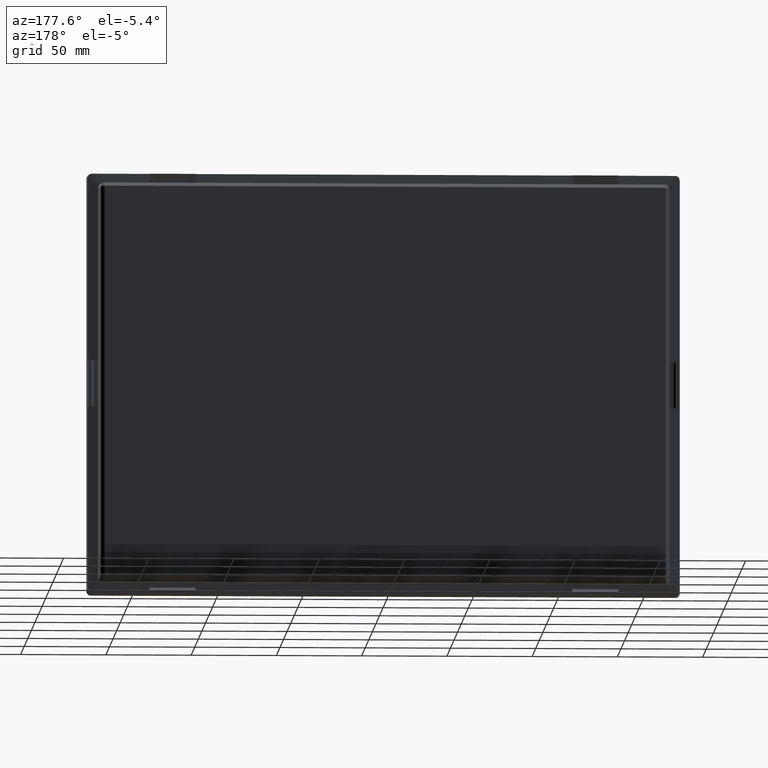
[diagram: clean part render]
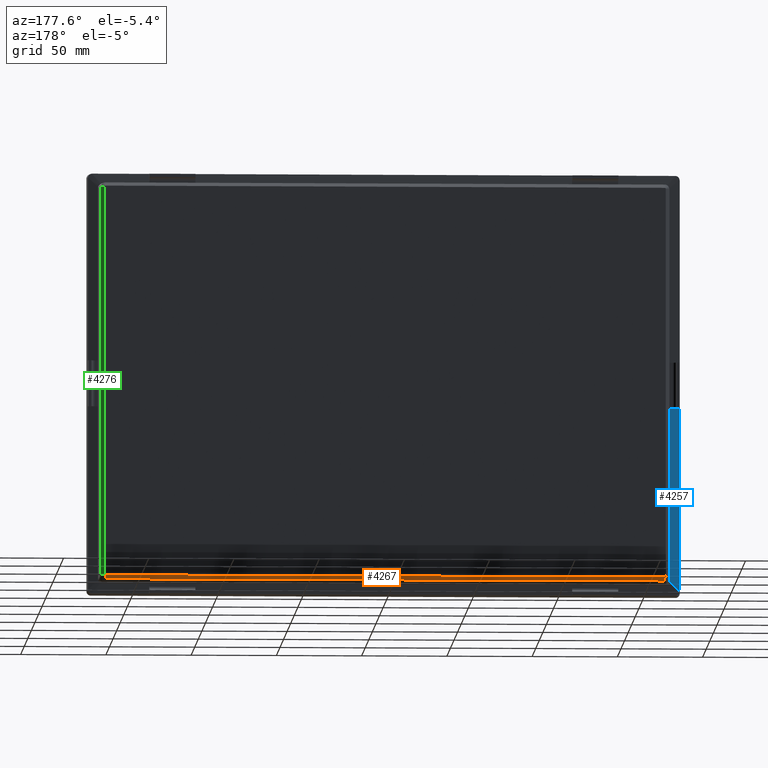
[diagram: same view with three faces highlighted in distinct colors, each labeled with its STEP entity id]
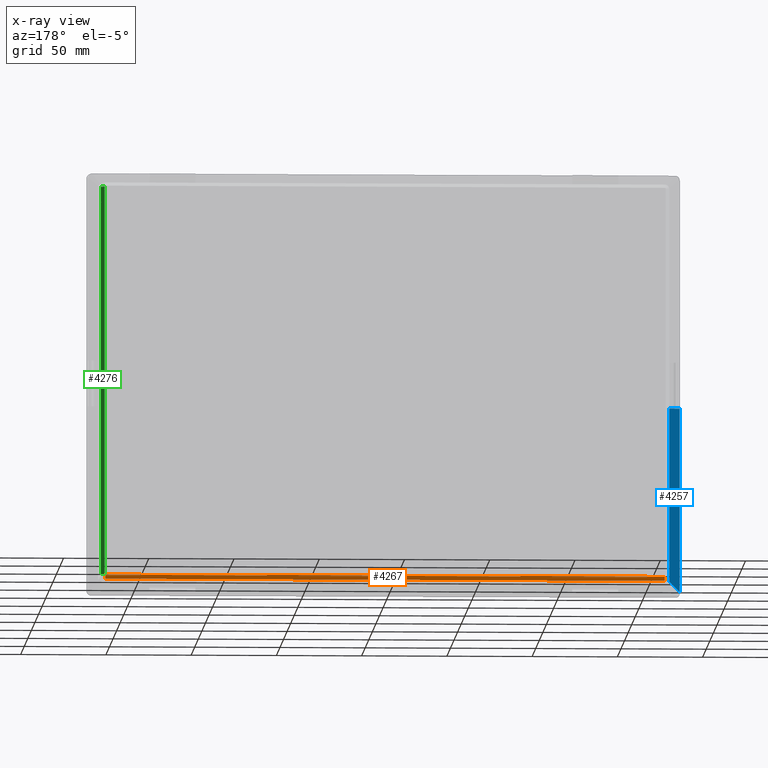
[diagram: x-ray of the same camera — body ghosted, the three highlighted faces saturated]
A machine part, auxiliary view with three faces highlighted in distinct colors.
The next image is the same camera in x-ray (body ghosted, the three faces saturated) — at least one of them is partly hidden behind the body in this view.
Their STEP definitions:

[orange] entity #4267 — the highlighted planar face has unit normal (0, -0.7254, 0.6884).
#178 = VECTOR ( 'NONE', #4289, 1000.000000000000000 ) ;
#179 = VECTOR ( 'NONE', #4287, 1000.000000000000000 ) ;
#698 = CARTESIAN_POINT ( 'NONE',  ( 164.0029244504000300, 28.00282219860000100, -116.6493728999000000 ) ) ;
#700 = CARTESIAN_POINT ( 'NONE',  ( -164.0029244504000300, 28.00282219860000100, -116.6493728999000000 ) ) ;
#726 = CARTESIAN_POINT ( 'NONE',  ( 164.0029275636000000, 30.00002131024999800, -114.5446441036000100 ) ) ;
#735 = CARTESIAN_POINT ( 'NONE',  ( -164.0029275636000000, 30.00002131024999800, -114.5446441036000100 ) ) ;
#775 = B_SPLINE_CURVE_WITH_KNOTS ( 'NONE', 3,
 ( #4286, #4285, #4284, #4283 ),
 .UNSPECIFIED., .F., .F.,
 ( 4, 4 ),
 ( 0.0000000000000000000, 1.000000000000000000 ),
 .UNSPECIFIED. ) ;
#783 = B_SPLINE_CURVE_WITH_KNOTS ( 'NONE', 3,
 ( #4282, #4321, #4322, #4323 ),
 .UNSPECIFIED., .F., .F.,
 ( 4, 4 ),
 ( 0.0000000000000000000, 1.000000000000000000 ),
 .UNSPECIFIED. ) ;
#1073 = ORIENTED_EDGE ( 'NONE', *, *, #1819, .F. ) ;
#1075 = ORIENTED_EDGE ( 'NONE', *, *, #1820, .T. ) ;
#1076 = ORIENTED_EDGE ( 'NONE', *, *, #1818, .F. ) ;
#1077 = ORIENTED_EDGE ( 'NONE', *, *, #1817, .F. ) ;
#1525 = FACE_OUTER_BOUND ( 'NONE', #1998, .T. ) ;
#1817 = EDGE_CURVE ( 'NONE', #2239, #2248, #2443, .T. ) ;
#1818 = EDGE_CURVE ( 'NONE', #2213, #2211, #2444, .T. ) ;
#1819 = EDGE_CURVE ( 'NONE', #2211, #2239, #775, .T. ) ;
#1820 = EDGE_CURVE ( 'NONE', #2213, #2248, #783, .T. ) ;
#1998 = EDGE_LOOP ( 'NONE', ( #1073, #1076, #1075, #1077 ) ) ;
#2211 = VERTEX_POINT ( 'NONE', #698 ) ;
#2213 = VERTEX_POINT ( 'NONE', #700 ) ;
#2239 = VERTEX_POINT ( 'NONE', #726 ) ;
#2248 = VERTEX_POINT ( 'NONE', #735 ) ;
#2443 = LINE ( 'NONE', #4290, #178 ) ;
#2444 = LINE ( 'NONE', #4288, #179 ) ;
#2666 = AXIS2_PLACEMENT_3D ( 'NONE', #3148, #3149, #3150 ) ;
#3147 = PLANE ( 'NONE',  #2666 ) ;
#3148 = CARTESIAN_POINT ( 'NONE',  ( 25.00000000000000000, 29.00137046525000500, -115.5969598421999900 ) ) ;
#3149 = DIRECTION ( 'NONE',  ( 0.0000000000000000000, -0.7253743710122705400, 0.6883545756937721200 ) ) ;
#3150 = DIRECTION ( 'NONE',  ( 0.0000000000000000000, 0.6883545756937720100, 0.7253743710122704200 ) ) ;
#4267 = ADVANCED_FACE ( 'NONE', ( #1525 ), #3147, .F. ) ;
#4282 = CARTESIAN_POINT ( 'NONE',  ( -164.0029244504000300, 28.00282219860000100, -116.6493728999000000 ) ) ;
#4283 = CARTESIAN_POINT ( 'NONE',  ( 164.0029275636000000, 30.00002131024999800, -114.5446441036000100 ) ) ;
#4284 = CARTESIAN_POINT ( 'NONE',  ( 164.0029265175825500, 29.33439811291299600, -115.2463244141749900 ) ) ;
#4285 = CARTESIAN_POINT ( 'NONE',  ( 164.0029223774993500, 28.66873213696762300, -115.9479643025815700 ) ) ;
#4286 = CARTESIAN_POINT ( 'NONE',  ( 164.0029244504000300, 28.00282219860000100, -116.6493728999000000 ) ) ;
#4287 = DIRECTION ( 'NONE',  ( 1.000000000000000000, 0.0000000000000000000, 0.0000000000000000000 ) ) ;
#4288 = CARTESIAN_POINT ( 'NONE',  ( -117.6085018054000000, 28.00274093049829800, -116.6492957984398500 ) ) ;
#4289 = DIRECTION ( 'NONE',  ( -1.000000000000000000, 0.0000000000000000000, 0.0000000000000000000 ) ) ;
#4290 = CARTESIAN_POINT ( 'NONE',  ( 25.00000000000000000, 30.00000000000000000, -114.5446238859619300 ) ) ;
#4321 = CARTESIAN_POINT ( 'NONE',  ( -164.0029254881020200, 28.66849396085759900, -115.9477384867016800 ) ) ;
#4322 = CARTESIAN_POINT ( 'NONE',  ( -164.0029265258040700, 29.33424698168559200, -115.2461811850074300 ) ) ;
#4323 = CARTESIAN_POINT ( 'NONE',  ( -164.0029275636000000, 30.00002131024999800, -114.5446441036000100 ) ) ;

[blue] entity #4257 — the highlighted planar face has unit normal (0.0872, -0.9962, 0).
#186 = VECTOR ( 'NONE', #3767, 1000.000000000000000 ) ;
#204 = VECTOR ( 'NONE', #4084, 1000.000000000000000 ) ;
#707 = CARTESIAN_POINT ( 'NONE',  ( -167.6085018054345100, 9.700000000003626600, -114.9621335383317300 ) ) ;
#708 = CARTESIAN_POINT ( 'NONE',  ( -167.6085018054000100, 9.700000000000001100, -13.50000000000000000 ) ) ;
#720 = CARTESIAN_POINT ( 'NONE',  ( -173.5006535672139900, 9.184503517070560000, -121.3217599985017000 ) ) ;
#723 = CARTESIAN_POINT ( 'NONE',  ( -173.5187435107999900, 9.182920852082000700, -121.0221696739000100 ) ) ;
#728 = CARTESIAN_POINT ( 'NONE',  ( -167.5729141304121900, 9.703113518128372300, -115.3940205617020400 ) ) ;
#734 = CARTESIAN_POINT ( 'NONE',  ( -173.5187435107999900, 9.182920852082000700, -13.50000000000000000 ) ) ;
#786 = B_SPLINE_CURVE_WITH_KNOTS ( 'NONE', 3,
 ( #3782, #3781, #3780, #3779 ),
 .UNSPECIFIED., .F., .F.,
 ( 4, 4 ),
 ( 0.0000000000000000000, 1.000000000000000000 ),
 .UNSPECIFIED. ) ;
#788 = B_SPLINE_CURVE_WITH_KNOTS ( 'NONE', 3,
 ( #3734, #3732, #3764, #3761 ),
 .UNSPECIFIED., .F., .F.,
 ( 4, 4 ),
 ( 0.0000000000000000000, 1.000000000000000000 ),
 .UNSPECIFIED. ) ;
#1122 = ORIENTED_EDGE ( 'NONE', *, *, #1832, .T. ) ;
#1123 = ORIENTED_EDGE ( 'NONE', *, *, #1826, .F. ) ;
#1124 = ORIENTED_EDGE ( 'NONE', *, *, #1856, .T. ) ;
#1125 = ORIENTED_EDGE ( 'NONE', *, *, #1857, .F. ) ;
#1126 = ORIENTED_EDGE ( 'NONE', *, *, #1855, .F. ) ;
#1127 = ORIENTED_EDGE ( 'NONE', *, *, #1848, .F. ) ;
#1518 = FACE_OUTER_BOUND ( 'NONE', #2019, .T. ) ;
#1713 = VECTOR ( 'NONE', #3740, 999.9999999999998900 ) ;
#1826 = EDGE_CURVE ( 'NONE', #2241, #2220, #786, .T. ) ;
#1832 = EDGE_CURVE ( 'NONE', #2221, #2220, #2451, .T. ) ;
#1848 = EDGE_CURVE ( 'NONE', #2247, #2236, #2465, .T. ) ;
#1855 = EDGE_CURVE ( 'NONE', #2236, #2233, #788, .T. ) ;
#1856 = EDGE_CURVE ( 'NONE', #2241, #2233, #2470, .T. ) ;
#1857 = EDGE_CURVE ( 'NONE', #2221, #2247, #2471, .T. ) ;
#2019 = EDGE_LOOP ( 'NONE', ( #1122, #1123, #1124, #1126, #1127, #1125 ) ) ;
#2220 = VERTEX_POINT ( 'NONE', #707 ) ;
#2221 = VERTEX_POINT ( 'NONE', #708 ) ;
#2233 = VERTEX_POINT ( 'NONE', #720 ) ;
#2236 = VERTEX_POINT ( 'NONE', #723 ) ;
#2241 = VERTEX_POINT ( 'NONE', #728 ) ;
#2247 = VERTEX_POINT ( 'NONE', #734 ) ;
#2451 = LINE ( 'NONE', #3768, #186 ) ;
#2465 = LINE ( 'NONE', #4116, #204 ) ;
#2470 = LINE ( 'NONE', #3755, #3609 ) ;
#2471 = LINE ( 'NONE', #3743, #1713 ) ;
#2631 = AXIS2_PLACEMENT_3D ( 'NONE', #3112, #3113, #3114 ) ;
#3111 = PLANE ( 'NONE',  #2631 ) ;
#3112 = CARTESIAN_POINT ( 'NONE',  ( -167.6085018054000100, 9.700000000000001100, -117.6085018054000000 ) ) ;
#3113 = DIRECTION ( 'NONE',  ( 0.08715574274766393900, -0.9961946980917451000, 0.0000000000000000000 ) ) ;
#3114 = DIRECTION ( 'NONE',  ( -0.9961946980917449900, -0.08715574274766392500, 0.0000000000000000000 ) ) ;
#3609 = VECTOR ( 'NONE', #3749, 1000.000000000000100 ) ;
#3732 = CARTESIAN_POINT ( 'NONE',  ( -173.5187435107999900, 9.182920852082000700, -121.1224001448000000 ) ) ;
#3734 = CARTESIAN_POINT ( 'NONE',  ( -173.5187435107999900, 9.182920852082000700, -121.0221696739000100 ) ) ;
#3740 = DIRECTION ( 'NONE',  ( -0.9961946980917451000, -0.08715574274766395300, -1.197647983650054100E-014 ) ) ;
#3743 = CARTESIAN_POINT ( 'NONE',  ( -167.6085018054000100, 9.700000000000001100, -13.50000000000000000 ) ) ;
#3749 = DIRECTION ( 'NONE',  ( -0.7057575568079018600, -0.06174578541845016100, -0.7057575568080019000 ) ) ;
#3755 = CARTESIAN_POINT ( 'NONE',  ( -167.5729141303999900, 9.703113518128999400, -115.3940205617000000 ) ) ;
#3761 = CARTESIAN_POINT ( 'NONE',  ( -173.5006535672139900, 9.184503517070560000, -121.3217599985017000 ) ) ;
#3764 = CARTESIAN_POINT ( 'NONE',  ( -173.5127180639000000, 9.183448010381999500, -121.2222638623000100 ) ) ;
#3767 = DIRECTION ( 'NONE',  ( 0.0000000000000000000, 0.0000000000000000000, -1.000000000000000000 ) ) ;
#3768 = CARTESIAN_POINT ( 'NONE',  ( -167.6085018054000100, 9.700000000000001100, -13.50000000000000000 ) ) ;
#3779 = CARTESIAN_POINT ( 'NONE',  ( -167.6085018054345100, 9.700000000003626600, -114.9621335383317300 ) ) ;
#3780 = CARTESIAN_POINT ( 'NONE',  ( -167.6085018054690500, 9.700000000007253900, -115.1079300478163200 ) ) ;
#3781 = CARTESIAN_POINT ( 'NONE',  ( -167.5964058570021400, 9.701058429264984200, -115.2525186574245600 ) ) ;
#3782 = CARTESIAN_POINT ( 'NONE',  ( -167.5729141304121900, 9.703113518128372300, -115.3940205617020400 ) ) ;
#4084 = DIRECTION ( 'NONE',  ( 0.0000000000000000000, 0.0000000000000000000, -1.000000000000000000 ) ) ;
#4116 = CARTESIAN_POINT ( 'NONE',  ( -173.5187435107999900, 9.182920852082000700, -13.50000000000000000 ) ) ;
#4257 = ADVANCED_FACE ( 'NONE', ( #1518 ), #3111, .F. ) ;

[green] entity #4276 — the highlighted planar face has unit normal (0.6884, 0.7254, 0).
#174 = VECTOR ( 'NONE', #3421, 1000.000000000000000 ) ;
#175 = VECTOR ( 'NONE', #3411, 1000.000000000000000 ) ;
#688 = CARTESIAN_POINT ( 'NONE',  ( 166.6493637655999900, 28.00281256858999900, 114.0029248293000000 ) ) ;
#701 = CARTESIAN_POINT ( 'NONE',  ( 164.5446417082999900, 30.00001878492999900, 114.0029275632000000 ) ) ;
#704 = CARTESIAN_POINT ( 'NONE',  ( 164.5446417082999900, 30.00001878492999900, -114.0029275632000000 ) ) ;
#718 = CARTESIAN_POINT ( 'NONE',  ( 166.6493637655999900, 28.00281256858999900, -114.0029248293000000 ) ) ;
#791 = B_SPLINE_CURVE_WITH_KNOTS ( 'NONE', 3,
 ( #3420, #3419, #3418, #3417 ),
 .UNSPECIFIED., .F., .F.,
 ( 4, 4 ),
 ( 0.0000000000000000000, 1.000000000000000000 ),
 .UNSPECIFIED. ) ;
#794 = B_SPLINE_CURVE_WITH_KNOTS ( 'NONE', 3,
 ( #3416, #3415, #3414, #3413 ),
 .UNSPECIFIED., .F., .F.,
 ( 4, 4 ),
 ( 0.0000000000000000000, 1.000000000000000000 ),
 .UNSPECIFIED. ) ;
#1062 = ORIENTED_EDGE ( 'NONE', *, *, #1808, .F. ) ;
#1063 = ORIENTED_EDGE ( 'NONE', *, *, #1809, .T. ) ;
#1064 = ORIENTED_EDGE ( 'NONE', *, *, #1807, .F. ) ;
#1066 = ORIENTED_EDGE ( 'NONE', *, *, #1810, .F. ) ;
#1532 = FACE_OUTER_BOUND ( 'NONE', #2028, .T. ) ;
#1807 = EDGE_CURVE ( 'NONE', #2231, #2184, #2439, .T. ) ;
#1808 = EDGE_CURVE ( 'NONE', #2184, #2214, #791, .T. ) ;
#1809 = EDGE_CURVE ( 'NONE', #2231, #2217, #794, .T. ) ;
#1810 = EDGE_CURVE ( 'NONE', #2214, #2217, #2440, .T. ) ;
#2028 = EDGE_LOOP ( 'NONE', ( #1062, #1064, #1063, #1066 ) ) ;
#2184 = VERTEX_POINT ( 'NONE', #688 ) ;
#2214 = VERTEX_POINT ( 'NONE', #701 ) ;
#2217 = VERTEX_POINT ( 'NONE', #704 ) ;
#2231 = VERTEX_POINT ( 'NONE', #718 ) ;
#2439 = LINE ( 'NONE', #3422, #174 ) ;
#2440 = LINE ( 'NONE', #3412, #175 ) ;
#2678 = AXIS2_PLACEMENT_3D ( 'NONE', #3180, #3181, #3182 ) ;
#3179 = PLANE ( 'NONE',  #2678 ) ;
#3180 = CARTESIAN_POINT ( 'NONE',  ( 165.5969598421999900, 29.00137046525000500, 25.00000000000000000 ) ) ;
#3181 = DIRECTION ( 'NONE',  ( 0.6883545756937721200, 0.7253743710122705400, 0.0000000000000000000 ) ) ;
#3182 = DIRECTION ( 'NONE',  ( -0.7253743710122704200, 0.6883545756937720100, 0.0000000000000000000 ) ) ;
#3411 = DIRECTION ( 'NONE',  ( 0.0000000000000000000, 0.0000000000000000000, -1.000000000000000000 ) ) ;
#3412 = CARTESIAN_POINT ( 'NONE',  ( 164.5446238859619300, 30.00000000000000000, 25.00000000000000000 ) ) ;
#3413 = CARTESIAN_POINT ( 'NONE',  ( 164.5446417082999900, 30.00001878492999900, -114.0029275632000000 ) ) ;
#3414 = CARTESIAN_POINT ( 'NONE',  ( 165.2461811861503500, 29.33424698060098000, -114.0029266518634900 ) ) ;
#3415 = CARTESIAN_POINT ( 'NONE',  ( 165.9477384883881800, 28.66849395925718000, -114.0029257405817400 ) ) ;
#3416 = CARTESIAN_POINT ( 'NONE',  ( 166.6493637655999900, 28.00281256858999900, -114.0029248293000000 ) ) ;
#3417 = CARTESIAN_POINT ( 'NONE',  ( 164.5446417082999900, 30.00001878492999900, 114.0029275632000000 ) ) ;
#3418 = CARTESIAN_POINT ( 'NONE',  ( 165.2463074455626200, 29.33438020343927700, 114.0029266617388300 ) ) ;
#3419 = CARTESIAN_POINT ( 'NONE',  ( 165.9479375502385800, 28.66870391280611900, 114.0029230272221500 ) ) ;
#3420 = CARTESIAN_POINT ( 'NONE',  ( 166.6493637655999900, 28.00281256858999900, 114.0029248293000000 ) ) ;
#3421 = DIRECTION ( 'NONE',  ( 0.0000000000000000000, 0.0000000000000000000, 1.000000000000000000 ) ) ;
#3422 = CARTESIAN_POINT ( 'NONE',  ( 166.6492957984398800, 28.00274093049828700, 117.6085018054000000 ) ) ;
#4276 = ADVANCED_FACE ( 'NONE', ( #1532 ), #3179, .T. ) ;